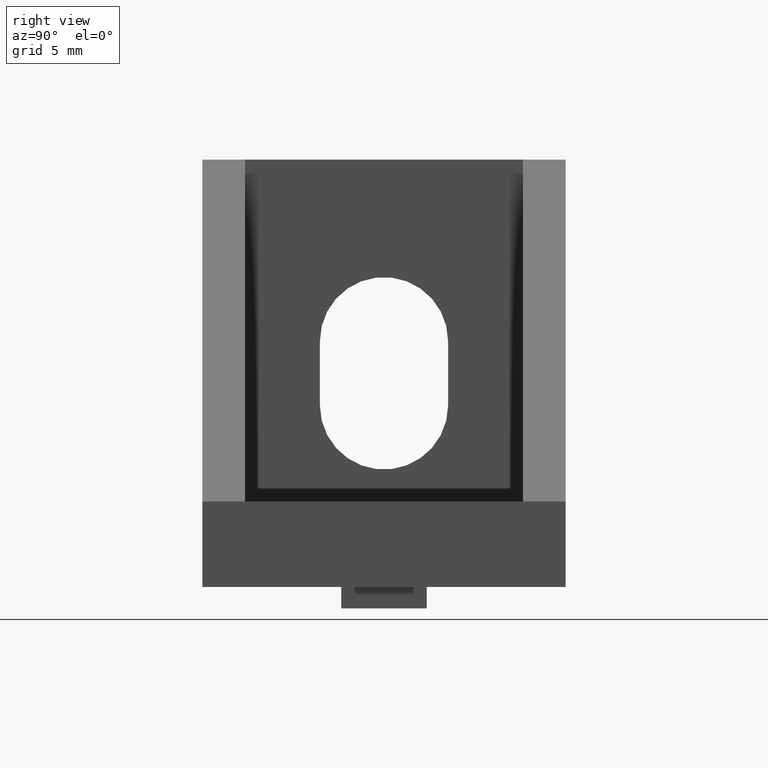
[diagram: clean part render]
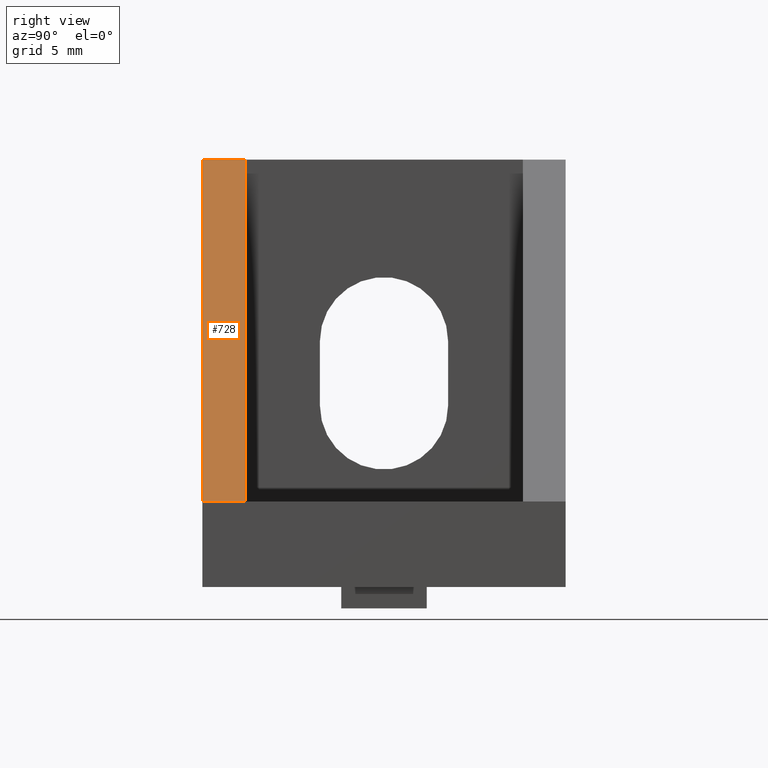
[diagram: same view with one face highlighted and labeled with its STEP entity id]
A machine part, right view. The second image highlights one B-rep face of the part: STEP entity #728.
In plain terms, the highlighted planar face has unit normal (0.7071, 0, 0.7071).
Its self-contained STEP definition (entity closure, byte-faithful):
#66=FACE_OUTER_BOUND('',#107,.T.);
#107=EDGE_LOOP('',(#592,#593,#594,#595));
#196=LINE('',#1158,#286);
#197=LINE('',#1159,#287);
#198=LINE('',#1161,#288);
#199=LINE('',#1162,#289);
#286=VECTOR('',#954,10.);
#287=VECTOR('',#955,10.);
#288=VECTOR('',#956,10.);
#289=VECTOR('',#957,10.);
#357=VERTEX_POINT('',#1152);
#358=VERTEX_POINT('',#1156);
#359=VERTEX_POINT('',#1157);
#360=VERTEX_POINT('',#1160);
#448=EDGE_CURVE('',#358,#359,#196,.T.);
#449=EDGE_CURVE('',#359,#357,#197,.T.);
#450=EDGE_CURVE('',#360,#357,#198,.T.);
#451=EDGE_CURVE('',#358,#360,#199,.T.);
#592=ORIENTED_EDGE('',*,*,#448,.T.);
#593=ORIENTED_EDGE('',*,*,#449,.T.);
#594=ORIENTED_EDGE('',*,*,#450,.F.);
#595=ORIENTED_EDGE('',*,*,#451,.F.);
#688=PLANE('',#790);
#728=ADVANCED_FACE('',(#66),#688,.T.);
#790=AXIS2_PLACEMENT_3D('',#1155,#952,#953);
#952=DIRECTION('center_axis',(0.707106781186548,0.,0.707106781186547));
#953=DIRECTION('ref_axis',(0.707106781186547,0.,-0.707106781186548));
#954=DIRECTION('',(0.707106781186547,0.,-0.707106781186548));
#955=DIRECTION('',(0.,1.,0.));
#956=DIRECTION('',(0.707106781186547,0.,-0.707106781186548));
#957=DIRECTION('',(0.,1.,0.));
#1152=CARTESIAN_POINT('',(20.,2.,4.));
#1155=CARTESIAN_POINT('Origin',(4.,0.,20.));
#1156=CARTESIAN_POINT('',(4.,0.,20.));
#1157=CARTESIAN_POINT('',(20.,0.,4.));
#1158=CARTESIAN_POINT('',(4.,0.,20.));
#1159=CARTESIAN_POINT('',(20.,0.,4.));
#1160=CARTESIAN_POINT('',(4.,2.,20.));
#1161=CARTESIAN_POINT('',(4.,2.,20.));
#1162=CARTESIAN_POINT('',(4.,0.,20.));